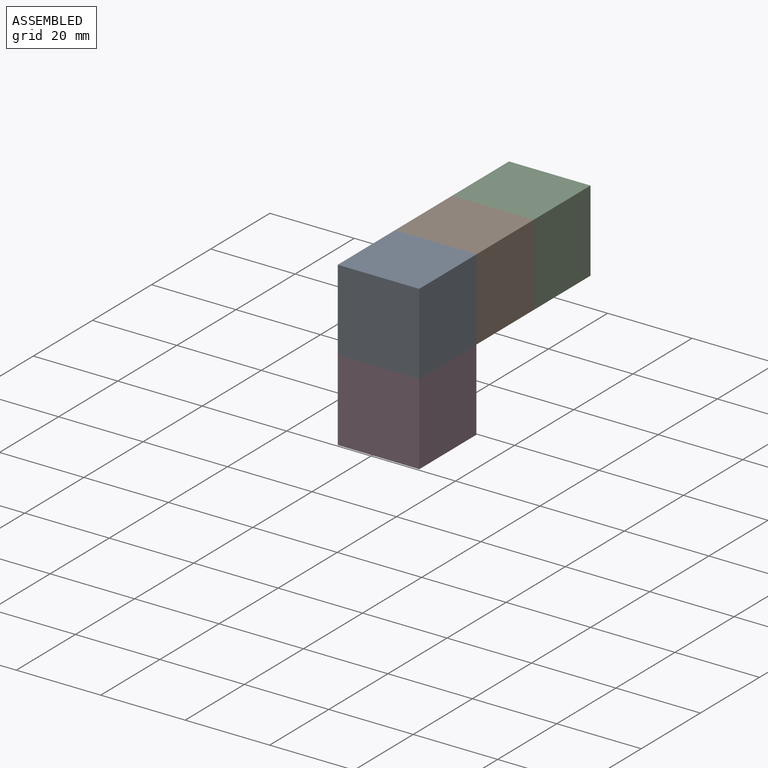
[diagram: assembled view]
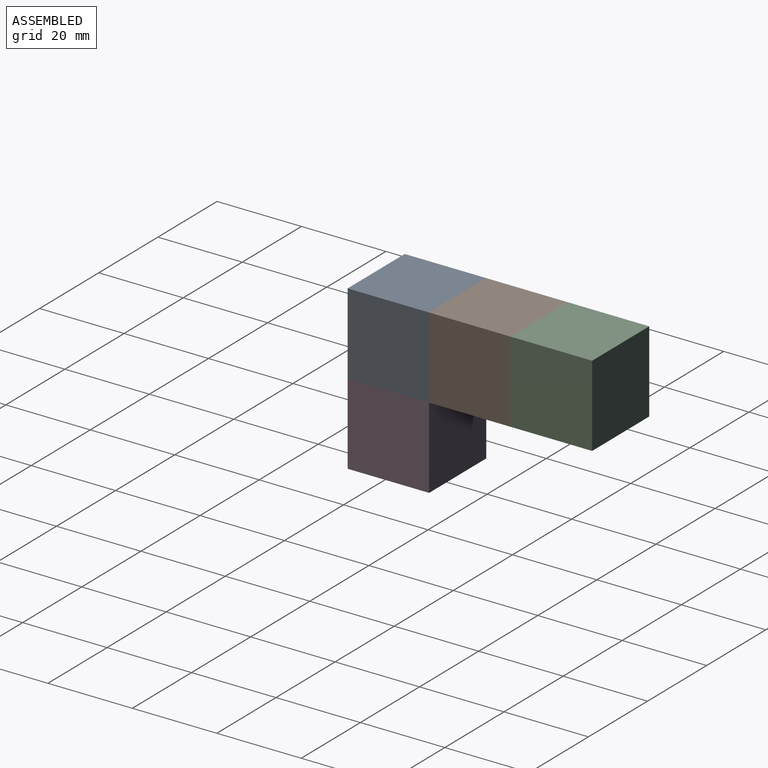
[diagram: assembled view, second angle]
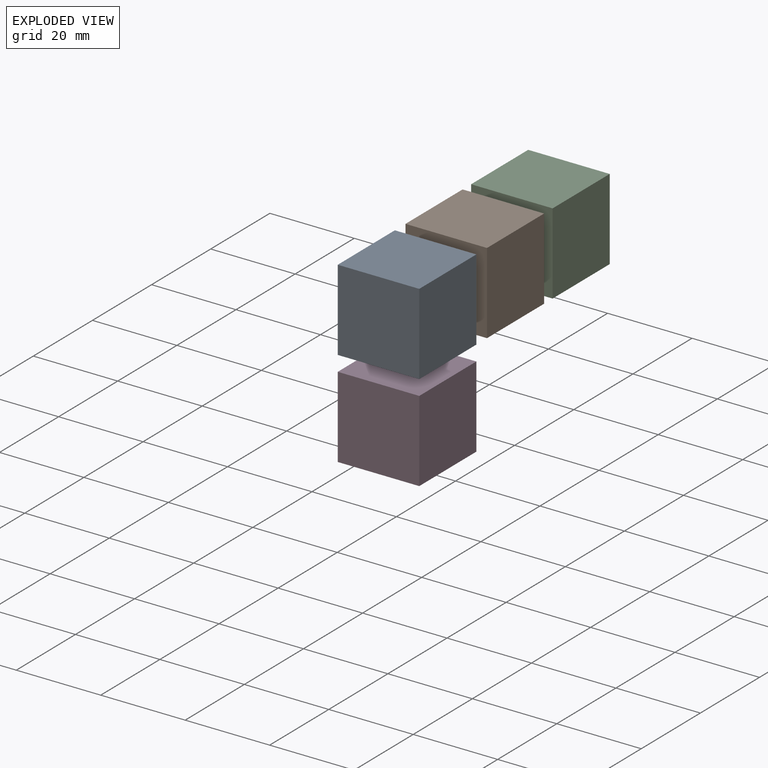
[diagram: exploded view]
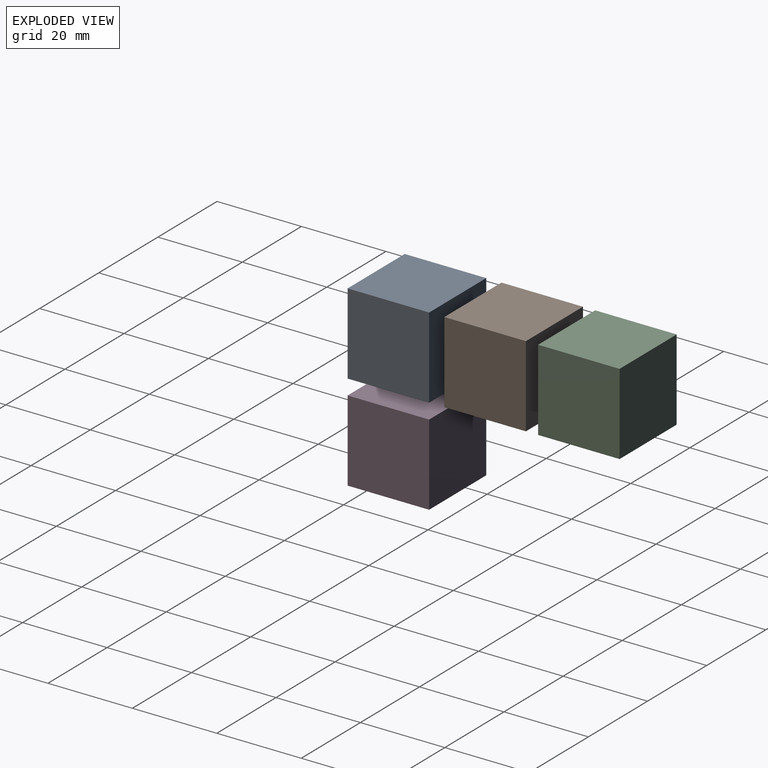
[diagram: exploded view, second angle]
ASSEMBLY  parts=4 mates=3
PART A: 6 faces, bbox 19.3x19.3x19.3 mm
  f0: plane 19.3x19.3mm, normal (0,0,1), area 372.6mm2, adj f1,f3,f4,f5
  f1: plane 19.3x19.3mm, normal (-1,0,0), area 372.6mm2, adj f0,f2,f4,f5
  f2: plane 19.3x19.3mm, normal (0,0,-1), area 372.6mm2, adj f1,f3,f4,f5
  f3: plane 19.3x19.3mm, normal (1,0,0), area 372.6mm2, adj f0,f2,f4,f5
  f4: plane 19.3x19.3mm, normal (0,-1,0), area 372.6mm2, adj f0,f1,f2,f3
  f5: plane 19.3x19.3mm, normal (0,1,0), area 372.6mm2, adj f0,f1,f2,f3
PART B: same geometry as A
PART C: same geometry as A
PART D: same geometry as A
PLACE A t=(-26.47,-17.5,7.82)mm
PLACE B t=(-26.47,1.81,7.82)mm
PLACE C t=(-26.47,21.11,7.82)mm
PLACE D t=(-26.47,-17.5,-11.49)mm
MATE fastened B.f4 <-> A.f5  axis (0,-1,0) through (-26.47,-17.5,7.82)mm
MATE fastened B.f5 <-> C.f4  axis (0,1,0) through (-26.47,1.81,7.82)mm
MATE fastened D.f0 <-> A.f2  axis (0,0,1) through (-26.47,-27.15,-1.84)mm
